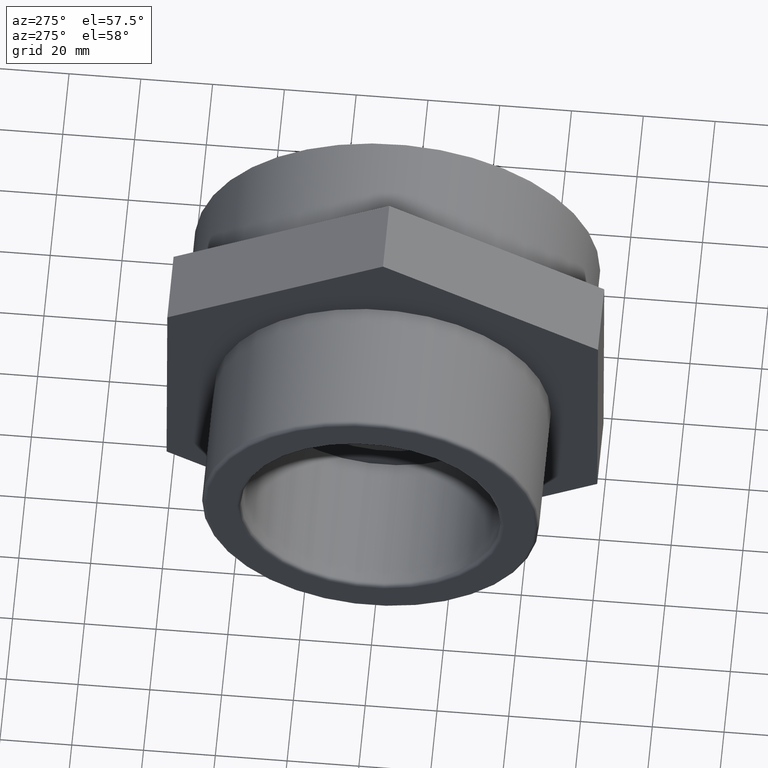
[diagram: clean part render]
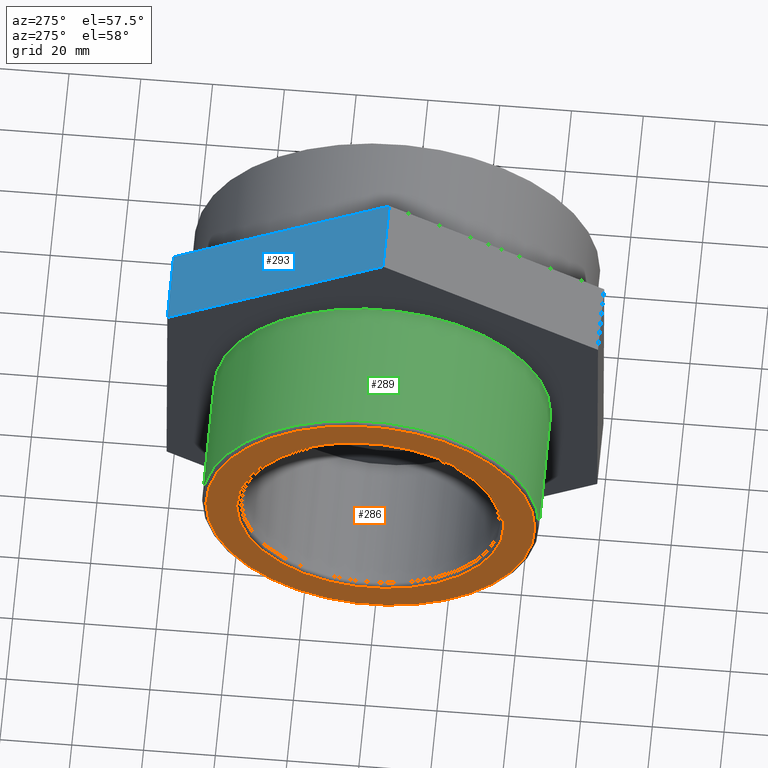
[diagram: same view with three faces highlighted in distinct colors, each labeled with its STEP entity id]
A machine part, auxiliary view with three faces highlighted in distinct colors.
Their STEP definitions:

[orange] entity #286 — the highlighted planar face has unit normal (-1, -0, 0).
#57=PLANE('',#317);
#74=FACE_BOUND('',#117,.T.);
#89=FACE_OUTER_BOUND('',#116,.T.);
#116=EDGE_LOOP('',(#224));
#117=EDGE_LOOP('',(#225));
#146=CIRCLE('',#315,37.2433);
#148=CIRCLE('',#318,45.8166);
#160=VERTEX_POINT('',#447);
#162=VERTEX_POINT('',#452);
#186=EDGE_CURVE('',#160,#160,#146,.T.);
#188=EDGE_CURVE('',#162,#162,#148,.T.);
#224=ORIENTED_EDGE('',*,*,#188,.F.);
#225=ORIENTED_EDGE('',*,*,#186,.F.);
#286=ADVANCED_FACE('',(#89,#74),#57,.T.);
#315=AXIS2_PLACEMENT_3D('',#448,#364,#365);
#317=AXIS2_PLACEMENT_3D('',#451,#368,#369);
#318=AXIS2_PLACEMENT_3D('',#453,#370,#371);
#364=DIRECTION('center_axis',(-1.,-1.83697019872103E-16,0.));
#365=DIRECTION('ref_axis',(-1.83697019872103E-16,1.,6.12323399573677E-17));
#368=DIRECTION('center_axis',(-1.,-1.83697019872103E-16,0.));
#369=DIRECTION('ref_axis',(0.,0.,1.));
#370=DIRECTION('center_axis',(1.,1.83697019872103E-16,0.));
#371=DIRECTION('ref_axis',(-1.83697019872103E-16,1.,6.12323399573677E-17));
#447=CARTESIAN_POINT('',(-43.5,-37.2433,2.28049440673423E-15));
#448=CARTESIAN_POINT('Origin',(-43.5,-1.84889274661175E-31,0.));
#451=CARTESIAN_POINT('Origin',(-43.5,-36.113,0.));
#452=CARTESIAN_POINT('',(-43.5,-45.8166,-8.41637288067219E-15));
#453=CARTESIAN_POINT('Origin',(-43.5,-6.77927340424307E-31,0.));

[blue] entity #293 — the highlighted planar face has unit normal (-0, 0.4974, 0.8675).
#25=LINE('',#487,#43);
#26=LINE('',#489,#44);
#27=LINE('',#491,#45);
#28=LINE('',#492,#46);
#43=VECTOR('',#402,69.2820323027551);
#44=VECTOR('',#403,20.);
#45=VECTOR('',#404,69.2820323027551);
#46=VECTOR('',#405,20.);
#61=PLANE('',#328);
#96=FACE_OUTER_BOUND('',#127,.T.);
#127=EDGE_LOOP('',(#244,#245,#246,#247));
#174=VERTEX_POINT('',#485);
#175=VERTEX_POINT('',#486);
#176=VERTEX_POINT('',#488);
#177=VERTEX_POINT('',#490);
#202=EDGE_CURVE('',#174,#175,#25,.T.);
#203=EDGE_CURVE('',#176,#175,#26,.T.);
#204=EDGE_CURVE('',#176,#177,#27,.T.);
#205=EDGE_CURVE('',#177,#174,#28,.T.);
#244=ORIENTED_EDGE('',*,*,#202,.T.);
#245=ORIENTED_EDGE('',*,*,#203,.F.);
#246=ORIENTED_EDGE('',*,*,#204,.T.);
#247=ORIENTED_EDGE('',*,*,#205,.T.);
#293=ADVANCED_FACE('',(#96),#61,.T.);
#328=AXIS2_PLACEMENT_3D('',#484,#400,#401);
#400=DIRECTION('center_axis',(-1.47269329551768E-16,0.497431573269339,0.867503216083255));
#401=DIRECTION('ref_axis',(-1.77635683940025E-16,0.867503216083254,-0.49743157326934));
#402=DIRECTION('',(1.59357755523959E-16,-0.867503216083255,0.497431573269339));
#403=DIRECTION('',(-1.,-2.96059473233373E-16,0.));
#404=DIRECTION('',(-1.59357755523959E-16,0.867503216083255,-0.497431573269339));
#405=DIRECTION('',(-1.,-2.96059473233373E-16,0.));
#484=CARTESIAN_POINT('Origin',(14.5,-0.205298523551626,69.2817281288236));
#485=CARTESIAN_POINT('',(-5.50000000000001,59.8970873158723,34.8186578011669));
#486=CARTESIAN_POINT('',(-5.5,-0.205298523551632,69.2817281288236));
#487=CARTESIAN_POINT('',(-5.5,14.8202979363044,60.6659605469094));
#488=CARTESIAN_POINT('',(14.5,-0.205298523551626,69.2817281288236));
#489=CARTESIAN_POINT('',(14.5,-0.205298523551626,69.2817281288236));
#490=CARTESIAN_POINT('',(14.5,59.8970873158724,34.8186578011669));
#491=CARTESIAN_POINT('',(14.5,-0.205298523551626,69.2817281288236));
#492=CARTESIAN_POINT('',(14.5,59.8970873158724,34.8186578011669));

[green] entity #289 — the highlighted cylindrical surface (bore or boss wall) has radius 46.9469 mm, axis along (-1, -0, 0).
#54=CYLINDRICAL_SURFACE('',#323,46.9469);
#77=FACE_BOUND('',#123,.T.);
#92=FACE_OUTER_BOUND('',#122,.T.);
#122=EDGE_LOOP('',(#230));
#123=EDGE_LOOP('',(#231));
#150=CIRCLE('',#322,46.9469);
#151=CIRCLE('',#324,46.9469);
#164=VERTEX_POINT('',#458);
#165=VERTEX_POINT('',#461);
#190=EDGE_CURVE('',#164,#164,#150,.T.);
#191=EDGE_CURVE('',#165,#165,#151,.T.);
#230=ORIENTED_EDGE('',*,*,#191,.T.);
#231=ORIENTED_EDGE('',*,*,#190,.F.);
#289=ADVANCED_FACE('',(#92,#77),#54,.T.);
#322=AXIS2_PLACEMENT_3D('',#459,#378,#379);
#323=AXIS2_PLACEMENT_3D('',#460,#380,#381);
#324=AXIS2_PLACEMENT_3D('',#462,#382,#383);
#378=DIRECTION('center_axis',(-1.,-1.83697019872103E-16,0.));
#379=DIRECTION('ref_axis',(-1.83275752836608E-16,1.,6.12323399573677E-17));
#380=DIRECTION('center_axis',(-1.,-1.83697019872103E-16,0.));
#381=DIRECTION('ref_axis',(1.84458177048457E-16,-1.,0.));
#382=DIRECTION('center_axis',(-1.,-1.83697019872103E-16,0.));
#383=DIRECTION('ref_axis',(0.,0.,1.));
#458=CARTESIAN_POINT('',(-42.3697,-46.9469,2.87466854074454E-15));
#459=CARTESIAN_POINT('Origin',(-42.3697,2.07632741561437E-16,0.));
#460=CARTESIAN_POINT('Origin',(-24.5,3.49024337756996E-15,0.));
#461=CARTESIAN_POINT('',(-5.49999999999999,-46.9469,0.));
#462=CARTESIAN_POINT('Origin',(-5.49999999999999,6.98048675513992E-15,0.));